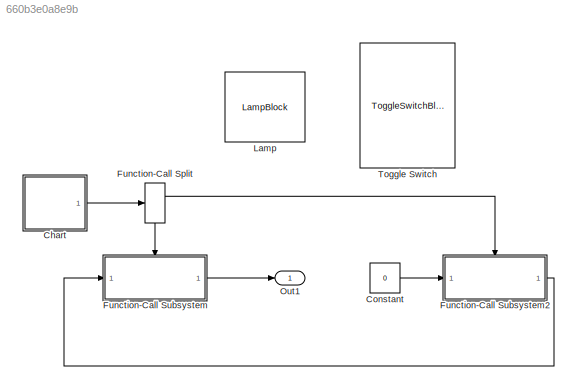
MODEL slx_660b3e0a8e9b
KIND model
CONFIG AbsTol = auto
CONFIG EnableMultiTasking = off
CONFIG FixedStep = auto
CONFIG MaxStep = auto
CONFIG MinStep = auto
CONFIG RelTol = 1e-3
CONFIG SampleTimeConstraint = Unconstrained
CONFIG Solver = VariableStepAuto
CONFIG SolverName = VariableStepAuto
CONFIG StartTime = 0.0
CONFIG StopTime = inf
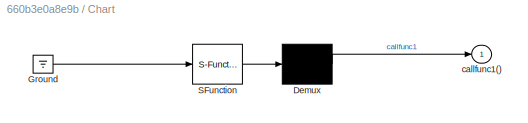
BLOCK [SubSystem] Chart
  ErrorFcn = Stateflow.Translate.translate
  PermitHierarchicalResolution = ExplicitOnly
  Ports = [0, 1]
  RequestExecContextInheritance = off
  SFBlockType = Chart
  TreatAsAtomicUnit = on
BLOCK [Demux] Chart/ Demux 
  Outputs = 1
  Ports = [1, 1]
BLOCK [Ground] Chart/ Ground 
BLOCK [S-Function] Chart/ SFunction 
  EnableBusSupport = on
  FunctionName = sf_sfun
  PortCounts = [1 1]
  Ports = [1, 1]
  SFcnIsStateOwnerBlock = off
  SFunctionDeploymentMode = off
  Tag = Stateflow S-Function Switch_Led_Sys 3
BLOCK [Outport] Chart/callfunc1()
  IconDisplay = Port number
BLOCK [Constant] Constant
  Value = 0
BLOCK [FunctionCallSplit] Function-Call Split
  NumOutputPorts = 2
  OutputPortLayout = default
  Ports = [1, 2]
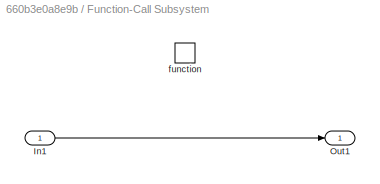
BLOCK [SubSystem] Function-Call Subsystem
  Ports = [1, 1, 0, 1]
  RequestExecContextInheritance = off
  TreatAsAtomicUnit = on
BLOCK [Inport] Function-Call Subsystem/In1
  IconDisplay = Port number
BLOCK [Outport] Function-Call Subsystem/Out1
  IconDisplay = Port number
BLOCK [TriggerPort] Function-Call Subsystem/function
  Ports = []
  StatesWhenEnabling = held
  TriggerType = function-call
  VariantControl = Variant
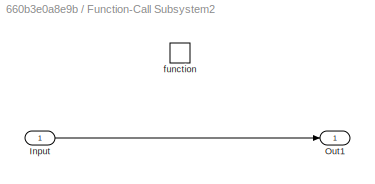
BLOCK [SubSystem] Function-Call Subsystem2
  Ports = [1, 1, 0, 1]
  RequestExecContextInheritance = off
  TreatAsAtomicUnit = on
BLOCK [Inport] Function-Call Subsystem2/Input
  IconDisplay = Port number
BLOCK [Outport] Function-Call Subsystem2/Out1
  IconDisplay = Port number
BLOCK [TriggerPort] Function-Call Subsystem2/function
  Ports = []
  StatesWhenEnabling = held
  TriggerType = function-call
  VariantControl = Variant
BLOCK [LampBlock] Lamp
  WebBlockId = 31
BLOCK [Outport] Out1
  IconDisplay = Port number
BLOCK [ToggleSwitchBlock] Toggle Switch
  WebBlockId = 30
LINE Chart:1 -> Function-Call Split:1
LINE Constant:1 -> Function-Call Subsystem2:1
LINE Function-Call Split:1 -> Function-Call Subsystem2:trigger
LINE Function-Call Split:2 -> Function-Call Subsystem:trigger
LINE Function-Call Subsystem/In1:1 -> Function-Call Subsystem/Out1:1
LINE Function-Call Subsystem2/Input:1 -> Function-Call Subsystem2/Out1:1
LINE Function-Call Subsystem2:1 -> Function-Call Subsystem:1
LINE Function-Call Subsystem:1 -> Out1:1
CHART Chart states=1 transitions=2
  STATE_LABEL 'TriggerFunc\nen:\ndu:\nex:'
